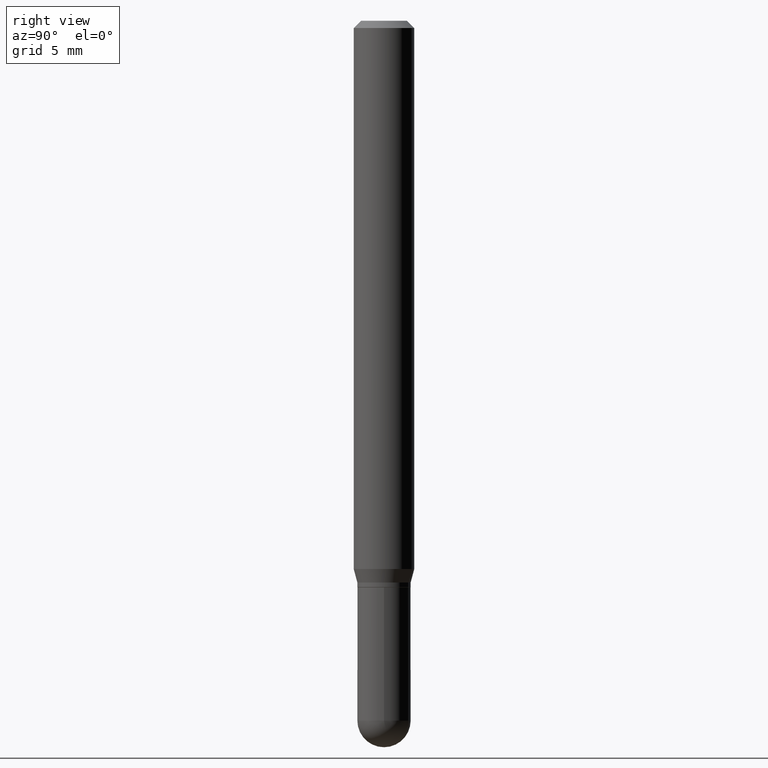
[diagram: clean part render]
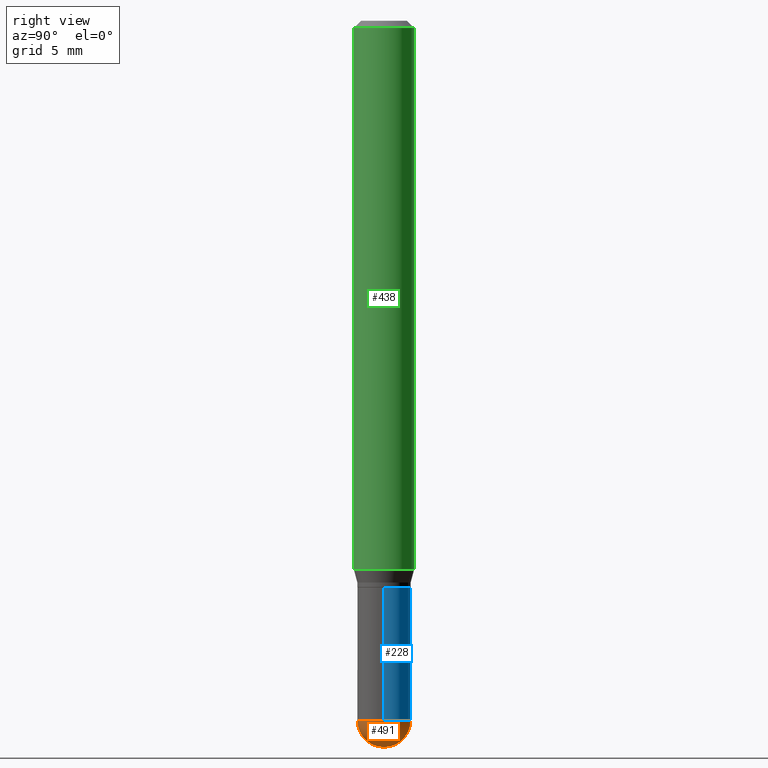
[diagram: same view with three faces highlighted in distinct colors, each labeled with its STEP entity id]
A machine part, right view with three faces highlighted in distinct colors.
Their STEP definitions:

[orange] entity #491 — the highlighted spherical surface has radius 1.397 mm.
#7 = DIRECTION ( 'NONE',  ( -6.982962677686265922E-15, -1.000000000000000000, 4.966996352116824932E-15 ) ) ;
#27 = DIRECTION ( 'NONE',  ( -2.445468806185136597E-29, 3.491481338843145583E-15, 1.000000000000000000 ) ) ;
#28 = ORIENTED_EDGE ( 'NONE', *, *, #163, .F. ) ;
#80 = DIRECTION ( 'NONE',  ( 1.000000000000000000, -6.982962677686265922E-15, 4.883557194083112901E-29 ) ) ;
#85 = CARTESIAN_POINT ( 'NONE',  ( -3.840629472727099789E-16, -0.05500000000000514894, -1.444999999999999840 ) ) ;
#102 = AXIS2_PLACEMENT_3D ( 'NONE', #505, #80, #7 ) ;
#104 = CIRCLE ( 'NONE', #393, 0.05500000000000018763 ) ;
#122 = EDGE_CURVE ( 'NONE', #509, #262, #411, .T. ) ;
#125 = AXIS2_PLACEMENT_3D ( 'NONE', #347, #150, #309 ) ;
#148 = EDGE_CURVE ( 'NONE', #423, #262, #317, .T. ) ;
#150 = DIRECTION ( 'NONE',  ( -2.445468806185136597E-29, 3.491481338843145583E-15, 1.000000000000000000 ) ) ;
#156 = CARTESIAN_POINT ( 'NONE',  ( 3.907985046680910960E-16, 0.05499999999999503897, -1.445000000000000284 ) ) ;
#162 = AXIS2_PLACEMENT_3D ( 'NONE', #242, #399, #192 ) ;
#163 = EDGE_CURVE ( 'NONE', #303, #423, #449, .T. ) ;
#171 = ORIENTED_EDGE ( 'NONE', *, *, #122, .T. ) ;
#180 = DIRECTION ( 'NONE',  ( -6.982962677686265922E-15, -1.000000000000000000, 0.000000000000000000 ) ) ;
#188 = CARTESIAN_POINT ( 'NONE',  ( 3.533702424937522517E-29, -5.045190534628345684E-15, -1.445000000000000062 ) ) ;
#190 = DIRECTION ( 'NONE',  ( 1.000000000000000000, -6.982962677686262766E-15, 0.000000000000000000 ) ) ;
#192 = DIRECTION ( 'NONE',  ( 7.105427357601001070E-15, 1.000000000000000000, 0.000000000000000000 ) ) ;
#218 = EDGE_CURVE ( 'NONE', #509, #303, #104, .T. ) ;
#219 = SPHERICAL_SURFACE ( 'NONE', #102, 0.05500000000000018763 ) ;
#232 = CARTESIAN_POINT ( 'NONE',  ( 3.528999010347036160E-29, -5.051926092023656149E-15, -1.445000000000000062 ) ) ;
#242 = CARTESIAN_POINT ( 'NONE',  ( 3.528999010347036160E-29, -5.051926092023656149E-15, -1.445000000000000062 ) ) ;
#262 = VERTEX_POINT ( 'NONE', #156 ) ;
#289 = FACE_OUTER_BOUND ( 'NONE', #432, .T. ) ;
#302 = ORIENTED_EDGE ( 'NONE', *, *, #218, .F. ) ;
#303 = VERTEX_POINT ( 'NONE', #85 ) ;
#309 = DIRECTION ( 'NONE',  ( 1.000000000000000000, -6.982962677686262766E-15, 0.000000000000000000 ) ) ;
#310 = AXIS2_PLACEMENT_3D ( 'NONE', #188, #27, #190 ) ;
#317 = CIRCLE ( 'NONE', #310, 0.05500000000000000028 ) ;
#347 = CARTESIAN_POINT ( 'NONE',  ( 3.533702424937522517E-29, -5.045190534628345684E-15, -1.445000000000000062 ) ) ;
#364 = CARTESIAN_POINT ( 'NONE',  ( 3.661148087391975640E-29, -5.247325344357685057E-15, -1.500000000000000222 ) ) ;
#373 = CARTESIAN_POINT ( 'NONE',  ( 0.05500000000000000028, -4.949174797810157466E-15, -1.445000000000000062 ) ) ;
#389 = DIRECTION ( 'NONE',  ( -1.000000000000000000, 6.982962677686265922E-15, -4.883557194083112340E-29 ) ) ;
#390 = ORIENTED_EDGE ( 'NONE', *, *, #148, .F. ) ;
#393 = AXIS2_PLACEMENT_3D ( 'NONE', #232, #389, #180 ) ;
#399 = DIRECTION ( 'NONE',  ( 1.000000000000000000, -7.105427357601001070E-15, 4.926315508542082329E-29 ) ) ;
#411 = CIRCLE ( 'NONE', #162, 0.05500000000000018763 ) ;
#423 = VERTEX_POINT ( 'NONE', #373 ) ;
#432 = EDGE_LOOP ( 'NONE', ( #302, #171, #390, #28 ) ) ;
#449 = CIRCLE ( 'NONE', #125, 0.05500000000000000028 ) ;
#491 = ADVANCED_FACE ( 'NONE', ( #289 ), #219, .T. ) ;
#505 = CARTESIAN_POINT ( 'NONE',  ( 3.528999010347036160E-29, -5.051926092023656149E-15, -1.445000000000000062 ) ) ;
#509 = VERTEX_POINT ( 'NONE', #364 ) ;

[blue] entity #228 — the highlighted cylindrical surface (edge-blend (fillet) strip) has radius 1.397 mm, axis along (-0, 0, 1).
#3 = ORIENTED_EDGE ( 'NONE', *, *, #148, .T. ) ;
#4 = VECTOR ( 'NONE', #181, 39.37007874015748143 ) ;
#17 = EDGE_LOOP ( 'NONE', ( #499, #155, #401, #472, #3 ) ) ;
#27 = DIRECTION ( 'NONE',  ( -2.445468806185136597E-29, 3.491481338843145583E-15, 1.000000000000000000 ) ) ;
#32 = DIRECTION ( 'NONE',  ( 1.000000000000000000, -6.982962677686262766E-15, 0.000000000000000000 ) ) ;
#42 = EDGE_CURVE ( 'NONE', #124, #301, #361, .T. ) ;
#62 = CARTESIAN_POINT ( 'NONE',  ( 0.000000000000000000, 0.000000000000000000, 0.000000000000000000 ) ) ;
#95 = CARTESIAN_POINT ( 'NONE',  ( 3.533702424937522517E-29, -5.045190534628345684E-15, -1.445000000000000062 ) ) ;
#124 = VERTEX_POINT ( 'NONE', #350 ) ;
#140 = FACE_OUTER_BOUND ( 'NONE', #17, .T. ) ;
#144 = VECTOR ( 'NONE', #165, 39.37007874015748143 ) ;
#148 = EDGE_CURVE ( 'NONE', #423, #262, #317, .T. ) ;
#149 = DIRECTION ( 'NONE',  ( -2.445468806185136597E-29, 3.491481338843145583E-15, 1.000000000000000000 ) ) ;
#155 = ORIENTED_EDGE ( 'NONE', *, *, #42, .T. ) ;
#156 = CARTESIAN_POINT ( 'NONE',  ( 3.907985046680910960E-16, 0.05499999999999503897, -1.445000000000000284 ) ) ;
#165 = DIRECTION ( 'NONE',  ( -2.445468806185136877E-29, 3.491481338843145188E-15, 1.000000000000000000 ) ) ;
#181 = DIRECTION ( 'NONE',  ( -2.445468806185136877E-29, 3.491481338843145188E-15, 1.000000000000000000 ) ) ;
#188 = CARTESIAN_POINT ( 'NONE',  ( 3.533702424937522517E-29, -5.045190534628345684E-15, -1.445000000000000062 ) ) ;
#189 = CARTESIAN_POINT ( 'NONE',  ( 2.861198503236610065E-29, -4.085033166446480067E-15, -1.170000000000000151 ) ) ;
#190 = DIRECTION ( 'NONE',  ( 1.000000000000000000, -6.982962677686262766E-15, 0.000000000000000000 ) ) ;
#201 = CARTESIAN_POINT ( 'NONE',  ( 0.05500000000000000028, -4.469096113719225052E-15, -1.170000000000000151 ) ) ;
#224 = DIRECTION ( 'NONE',  ( -2.445468806185136597E-29, 3.491481338843145583E-15, 1.000000000000000000 ) ) ;
#226 = AXIS2_PLACEMENT_3D ( 'NONE', #62, #224, #307 ) ;
#228 = ADVANCED_FACE ( 'NONE', ( #140 ), #338, .T. ) ;
#251 = EDGE_CURVE ( 'NONE', #445, #301, #493, .T. ) ;
#256 = EDGE_CURVE ( 'NONE', #423, #445, #462, .T. ) ;
#262 = VERTEX_POINT ( 'NONE', #156 ) ;
#301 = VERTEX_POINT ( 'NONE', #451 ) ;
#307 = DIRECTION ( 'NONE',  ( 1.000000000000000000, -6.982962677686266711E-15, 4.876176775795935793E-29 ) ) ;
#308 = DIRECTION ( 'NONE',  ( 1.000000000000000000, -6.982962677686262766E-15, 0.000000000000000000 ) ) ;
#310 = AXIS2_PLACEMENT_3D ( 'NONE', #188, #27, #190 ) ;
#317 = CIRCLE ( 'NONE', #310, 0.05500000000000000028 ) ;
#338 = CYLINDRICAL_SURFACE ( 'NONE', #226, 0.05500000000000000028 ) ;
#350 = CARTESIAN_POINT ( 'NONE',  ( -0.05500000000000000028, -4.174313345869358610E-15, -1.445000000000000062 ) ) ;
#356 = CARTESIAN_POINT ( 'NONE',  ( -0.05500000000000000028, 3.907985046680551042E-16, -2.705414299640198362E-30 ) ) ;
#361 = LINE ( 'NONE', #356, #144 ) ;
#373 = CARTESIAN_POINT ( 'NONE',  ( 0.05500000000000000028, -4.949174797810157466E-15, -1.445000000000000062 ) ) ;
#391 = DIRECTION ( 'NONE',  ( -2.445468806185136597E-29, 3.491481338843145583E-15, 1.000000000000000000 ) ) ;
#400 = AXIS2_PLACEMENT_3D ( 'NONE', #189, #149, #308 ) ;
#401 = ORIENTED_EDGE ( 'NONE', *, *, #251, .F. ) ;
#412 = AXIS2_PLACEMENT_3D ( 'NONE', #95, #391, #32 ) ;
#423 = VERTEX_POINT ( 'NONE', #373 ) ;
#436 = CIRCLE ( 'NONE', #412, 0.05500000000000000028 ) ;
#445 = VERTEX_POINT ( 'NONE', #201 ) ;
#451 = CARTESIAN_POINT ( 'NONE',  ( -0.05500000000000000028, -4.174313345869358610E-15, -1.170000000000000151 ) ) ;
#453 = EDGE_CURVE ( 'NONE', #262, #124, #436, .T. ) ;
#454 = CARTESIAN_POINT ( 'NONE',  ( 0.05500000000000000028, -3.840629472727446888E-16, 2.681897226687764826E-30 ) ) ;
#462 = LINE ( 'NONE', #454, #4 ) ;
#472 = ORIENTED_EDGE ( 'NONE', *, *, #256, .F. ) ;
#493 = CIRCLE ( 'NONE', #400, 0.05500000000000000028 ) ;
#499 = ORIENTED_EDGE ( 'NONE', *, *, #453, .T. ) ;

[green] entity #438 — the highlighted cylindrical surface (edge-blend (fillet) strip) has radius 1.5875 mm, axis along (-0, 0, 1).
#22 = VECTOR ( 'NONE', #23, 39.37007874015748143 ) ;
#23 = DIRECTION ( 'NONE',  ( -2.445556750322185455E-29, 3.491355397833421565E-15, 1.000000000000000000 ) ) ;
#30 = CARTESIAN_POINT ( 'NONE',  ( 3.668335125483358950E-31, -5.237033096750247867E-17, -0.01500000000000032904 ) ) ;
#34 = AXIS2_PLACEMENT_3D ( 'NONE', #30, #437, #358 ) ;
#38 = DIRECTION ( 'NONE',  ( -2.445556750322185455E-29, 3.491355397833421565E-15, 1.000000000000000000 ) ) ;
#45 = ORIENTED_EDGE ( 'NONE', *, *, #452, .T. ) ;
#47 = CARTESIAN_POINT ( 'NONE',  ( -4.364351673553912750E-16, -0.06250000000000005551, -0.01500000000000011047 ) ) ;
#54 = ORIENTED_EDGE ( 'NONE', *, *, #117, .F. ) ;
#81 = VERTEX_POINT ( 'NONE', #281 ) ;
#99 = CYLINDRICAL_SURFACE ( 'NONE', #360, 0.06250000000000000000 ) ;
#106 = VECTOR ( 'NONE', #38, 39.37007874015748143 ) ;
#117 = EDGE_CURVE ( 'NONE', #233, #81, #426, .T. ) ;
#123 = CIRCLE ( 'NONE', #194, 0.06250000000000000000 ) ;
#128 = LINE ( 'NONE', #332, #106 ) ;
#139 = EDGE_CURVE ( 'NONE', #331, #233, #167, .T. ) ;
#167 = LINE ( 'NONE', #414, #22 ) ;
#184 = ORIENTED_EDGE ( 'NONE', *, *, #284, .T. ) ;
#193 = ORIENTED_EDGE ( 'NONE', *, *, #139, .F. ) ;
#194 = AXIS2_PLACEMENT_3D ( 'NONE', #334, #492, #248 ) ;
#230 = EDGE_LOOP ( 'NONE', ( #184, #45, #54, #193 ) ) ;
#233 = VERTEX_POINT ( 'NONE', #47 ) ;
#239 = CARTESIAN_POINT ( 'NONE',  ( 0.000000000000000000, 0.000000000000000000, 0.000000000000000000 ) ) ;
#248 = DIRECTION ( 'NONE',  ( -6.982962677686265922E-15, -1.000000000000000000, 4.370956789862821150E-15 ) ) ;
#281 = CARTESIAN_POINT ( 'NONE',  ( 4.440892098500904235E-16, 0.06249999999999995143, -0.01500000000000054588 ) ) ;
#284 = EDGE_CURVE ( 'NONE', #331, #351, #123, .T. ) ;
#291 = DIRECTION ( 'NONE',  ( -2.445556750322185455E-29, 3.491355397833421960E-15, 1.000000000000000000 ) ) ;
#292 = CARTESIAN_POINT ( 'NONE',  ( -4.364351673553640100E-16, -0.06250000000000395517, -1.132009618943233598 ) ) ;
#331 = VERTEX_POINT ( 'NONE', #292 ) ;
#332 = CARTESIAN_POINT ( 'NONE',  ( 4.440892098500625669E-16, 0.06250000000000000000, -2.182097123645888725E-16 ) ) ;
#334 = CARTESIAN_POINT ( 'NONE',  ( 2.768393765036270570E-29, -3.952247893496815155E-15, -1.132009618943233820 ) ) ;
#351 = VERTEX_POINT ( 'NONE', #366 ) ;
#358 = DIRECTION ( 'NONE',  ( -6.982962677686265922E-15, -1.000000000000000000, 3.483106191921935554E-15 ) ) ;
#360 = AXIS2_PLACEMENT_3D ( 'NONE', #239, #291, #394 ) ;
#366 = CARTESIAN_POINT ( 'NONE',  ( 4.440892098500901277E-16, 0.06249999999999603789, -1.132009618943234264 ) ) ;
#394 = DIRECTION ( 'NONE',  ( -6.982962677686265922E-15, -1.000000000000000000, 3.491355397833421960E-15 ) ) ;
#414 = CARTESIAN_POINT ( 'NONE',  ( -4.364351673553916201E-16, -0.06250000000000000000, 2.182097123645888725E-16 ) ) ;
#426 = CIRCLE ( 'NONE', #34, 0.06250000000000000000 ) ;
#437 = DIRECTION ( 'NONE',  ( -2.445556750322185455E-29, 3.491355397833421960E-15, 1.000000000000000000 ) ) ;
#438 = ADVANCED_FACE ( 'NONE', ( #459 ), #99, .T. ) ;
#452 = EDGE_CURVE ( 'NONE', #351, #81, #128, .T. ) ;
#459 = FACE_OUTER_BOUND ( 'NONE', #230, .T. ) ;
#492 = DIRECTION ( 'NONE',  ( -2.445556750322185455E-29, 3.491355397833421960E-15, 1.000000000000000000 ) ) ;